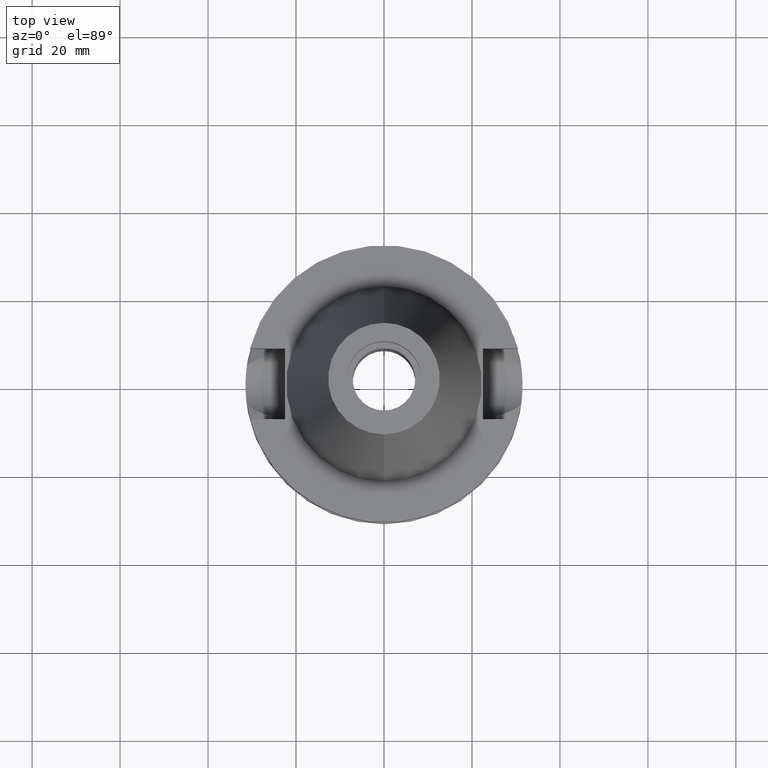
[diagram: clean part render]
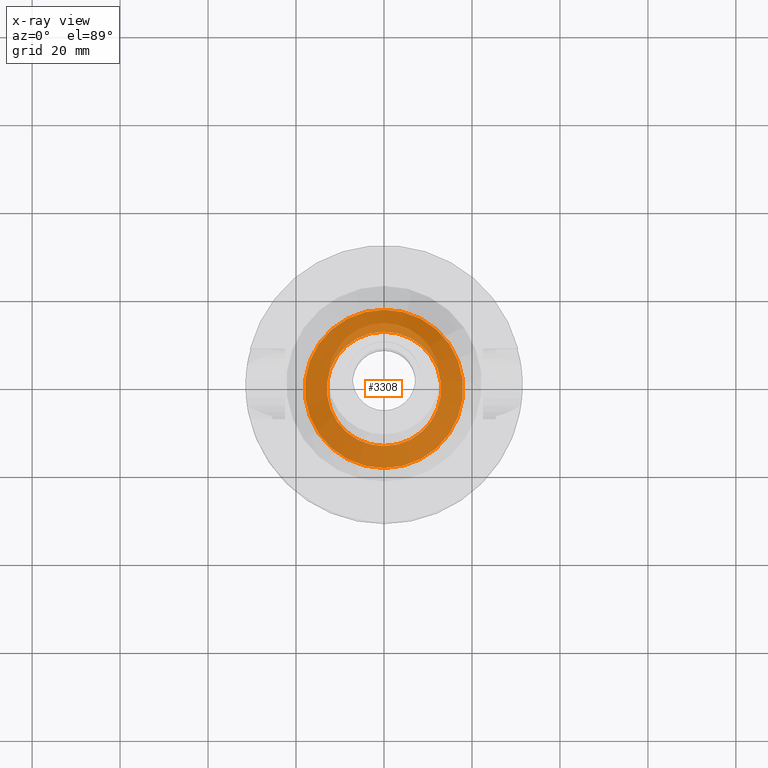
[diagram: x-ray — body ghosted, one internal face saturated and labeled with its STEP entity id]
A machine part, top view, then the same camera in x-ray: the body is ghosted and one INTERNAL B-rep face — a face not visible from any outside direction — is saturated and labeled: STEP entity #3308.
In plain terms, the highlighted planar face has unit normal (0, 0, -1).
Its self-contained STEP definition (entity closure, byte-faithful):
#185 = DIRECTION ( 'NONE',  ( 0.0000000000000000000, 0.0000000000000000000, -1.000000000000000000 ) ) ;
#221 = DIRECTION ( 'NONE',  ( 0.0000000000000000000, -1.000000000000000000, 0.0000000000000000000 ) ) ;
#373 = CARTESIAN_POINT ( 'NONE',  ( 0.0000000000000000000, 13.00000000000000000, -10.80000000000000071 ) ) ;
#399 = AXIS2_PLACEMENT_3D ( 'NONE', #3357, #2262, #3151 ) ;
#469 = CARTESIAN_POINT ( 'NONE',  ( 0.0000000000000000000, 0.0000000000000000000, -10.80000000000000071 ) ) ;
#521 = EDGE_CURVE ( 'NONE', #1699, #798, #2292, .T. ) ;
#690 = AXIS2_PLACEMENT_3D ( 'NONE', #1097, #2963, #1665 ) ;
#798 = VERTEX_POINT ( 'NONE', #3179 ) ;
#810 = EDGE_LOOP ( 'NONE', ( #3469, #3061 ) ) ;
#1084 = DIRECTION ( 'NONE',  ( 0.0000000000000000000, 0.0000000000000000000, -1.000000000000000000 ) ) ;
#1097 = CARTESIAN_POINT ( 'NONE',  ( 0.0000000000000000000, 0.0000000000000000000, -10.80000000000000071 ) ) ;
#1269 = ORIENTED_EDGE ( 'NONE', *, *, #2947, .F. ) ;
#1391 = AXIS2_PLACEMENT_3D ( 'NONE', #469, #1084, #2661 ) ;
#1477 = VERTEX_POINT ( 'NONE', #2636 ) ;
#1610 = AXIS2_PLACEMENT_3D ( 'NONE', #3500, #185, #221 ) ;
#1623 = DIRECTION ( 'NONE',  ( 0.0000000000000000000, 0.0000000000000000000, 1.000000000000000000 ) ) ;
#1665 = DIRECTION ( 'NONE',  ( 0.0000000000000000000, -1.000000000000000000, 0.0000000000000000000 ) ) ;
#1699 = VERTEX_POINT ( 'NONE', #3411 ) ;
#1808 = FACE_OUTER_BOUND ( 'NONE', #810, .T. ) ;
#1827 = CIRCLE ( 'NONE', #399, 18.00000000000000000 ) ;
#1847 = ORIENTED_EDGE ( 'NONE', *, *, #1920, .F. ) ;
#1920 = EDGE_CURVE ( 'NONE', #1477, #2206, #2219, .T. ) ;
#1921 = CARTESIAN_POINT ( 'NONE',  ( 0.0000000000000000000, 0.0000000000000000000, -10.80000000000000071 ) ) ;
#2185 = DIRECTION ( 'NONE',  ( 0.0000000000000000000, 1.000000000000000000, 0.0000000000000000000 ) ) ;
#2206 = VERTEX_POINT ( 'NONE', #373 ) ;
#2219 = CIRCLE ( 'NONE', #690, 13.00000000000000000 ) ;
#2251 = EDGE_CURVE ( 'NONE', #798, #1699, #1827, .T. ) ;
#2262 = DIRECTION ( 'NONE',  ( 0.0000000000000000000, 0.0000000000000000000, -1.000000000000000000 ) ) ;
#2292 = CIRCLE ( 'NONE', #1391, 18.00000000000000000 ) ;
#2636 = CARTESIAN_POINT ( 'NONE',  ( 0.0000000000000000000, -13.00000000000000000, -10.80000000000000071 ) ) ;
#2661 = DIRECTION ( 'NONE',  ( 0.0000000000000000000, -1.000000000000000000, 0.0000000000000000000 ) ) ;
#2677 = AXIS2_PLACEMENT_3D ( 'NONE', #1921, #1623, #2185 ) ;
#2946 = PLANE ( 'NONE',  #1610 ) ;
#2947 = EDGE_CURVE ( 'NONE', #2206, #1477, #3328, .T. ) ;
#2963 = DIRECTION ( 'NONE',  ( 0.0000000000000000000, 0.0000000000000000000, 1.000000000000000000 ) ) ;
#2989 = EDGE_LOOP ( 'NONE', ( #1269, #1847 ) ) ;
#3061 = ORIENTED_EDGE ( 'NONE', *, *, #521, .F. ) ;
#3151 = DIRECTION ( 'NONE',  ( 0.0000000000000000000, 1.000000000000000000, 0.0000000000000000000 ) ) ;
#3179 = CARTESIAN_POINT ( 'NONE',  ( 0.0000000000000000000, 18.00000000000000000, -10.80000000000000071 ) ) ;
#3308 = ADVANCED_FACE ( 'NONE', ( #1808, #3482 ), #2946, .F. ) ;
#3328 = CIRCLE ( 'NONE', #2677, 13.00000000000000000 ) ;
#3357 = CARTESIAN_POINT ( 'NONE',  ( 0.0000000000000000000, 0.0000000000000000000, -10.80000000000000071 ) ) ;
#3411 = CARTESIAN_POINT ( 'NONE',  ( 0.0000000000000000000, -18.00000000000000000, -10.80000000000000071 ) ) ;
#3469 = ORIENTED_EDGE ( 'NONE', *, *, #2251, .F. ) ;
#3482 = FACE_BOUND ( 'NONE', #2989, .T. ) ;
#3500 = CARTESIAN_POINT ( 'NONE',  ( 0.0000000000000000000, 0.0000000000000000000, -10.80000000000000071 ) ) ;